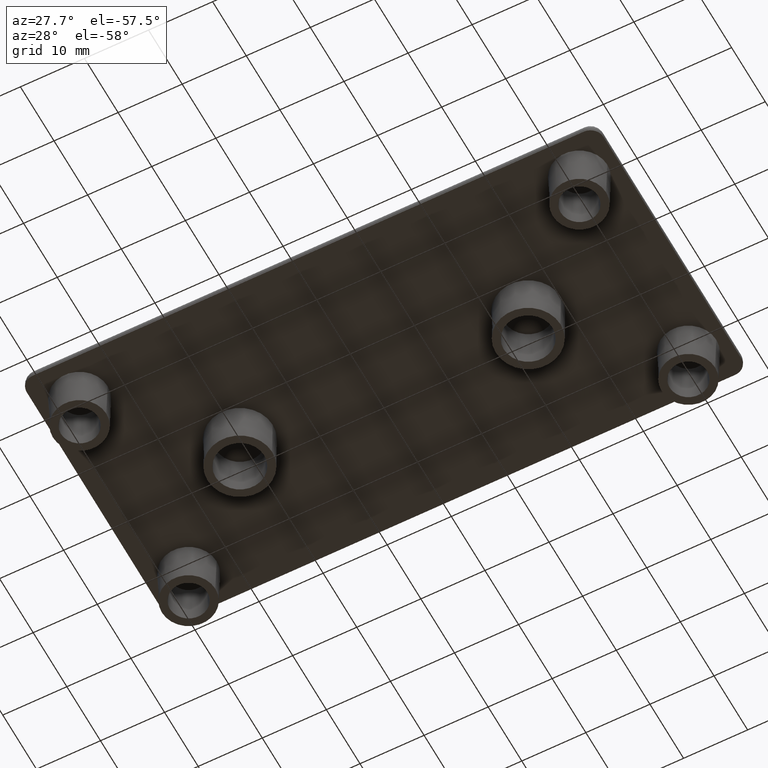
[diagram: clean part render]
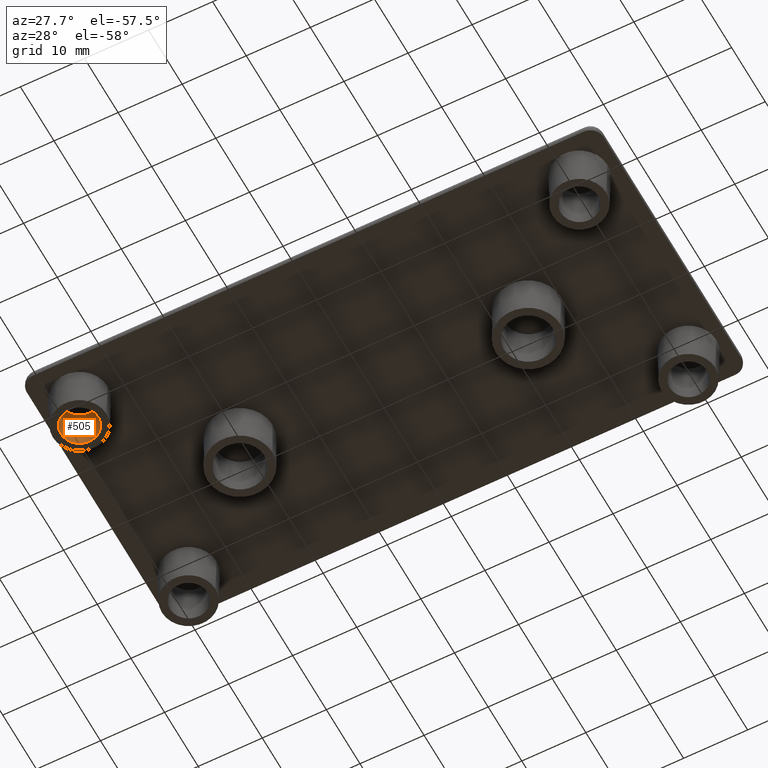
[diagram: same view with one face highlighted and labeled with its STEP entity id]
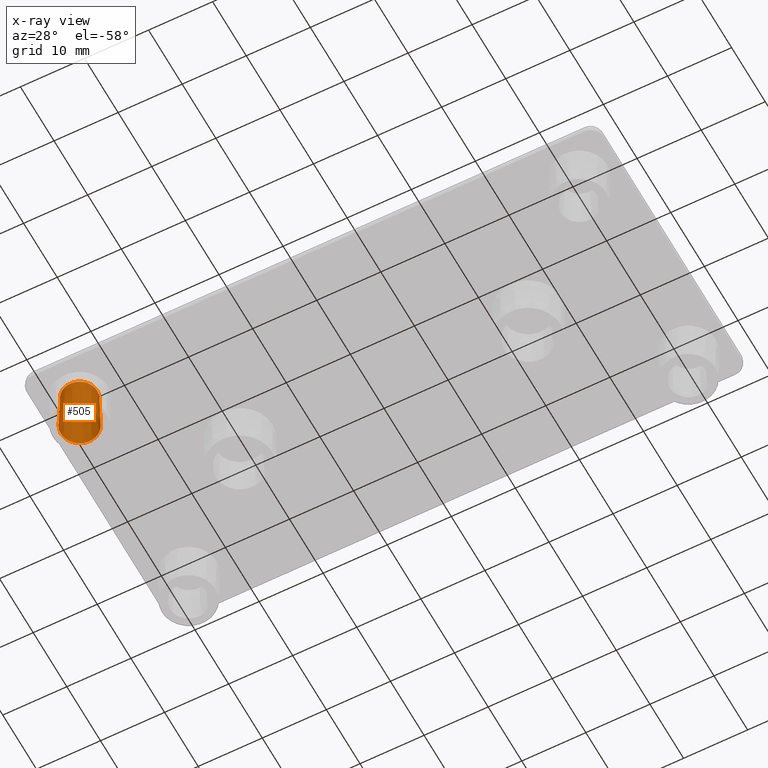
[diagram: x-ray of the same camera — body ghosted, the highlighted face saturated]
A machine part, auxiliary view. The second image highlights one B-rep face of the part: STEP entity #505.
The next image is the same camera in x-ray: the body ghosted, the highlighted face saturated — about 0% of this face is hidden behind the body in this view.
In plain terms, the highlighted conical surface has half-angle 1.5 deg.
Its self-contained STEP definition (entity closure, byte-faithful):
#100=FACE_BOUND('',#179,.T.);
#121=FACE_OUTER_BOUND('',#178,.T.);
#178=EDGE_LOOP('',(#398));
#179=EDGE_LOOP('',(#399));
#236=CIRCLE('',#569,2.925);
#237=CIRCLE('',#570,2.74169854901569);
#284=VERTEX_POINT('',#873);
#285=VERTEX_POINT('',#875);
#328=EDGE_CURVE('',#284,#284,#236,.T.);
#329=EDGE_CURVE('',#285,#285,#237,.T.);
#398=ORIENTED_EDGE('',*,*,#328,.F.);
#399=ORIENTED_EDGE('',*,*,#329,.F.);
#487=CONICAL_SURFACE('',#568,2.925,1.5);
#505=ADVANCED_FACE('',(#121,#100),#487,.F.);
#568=AXIS2_PLACEMENT_3D('',#872,#691,#692);
#569=AXIS2_PLACEMENT_3D('',#874,#693,#694);
#570=AXIS2_PLACEMENT_3D('',#876,#695,#696);
#691=DIRECTION('center_axis',(0.,0.,-1.));
#692=DIRECTION('ref_axis',(-1.,0.,0.));
#693=DIRECTION('center_axis',(0.,0.,1.));
#694=DIRECTION('ref_axis',(-1.,0.,0.));
#695=DIRECTION('center_axis',(0.,0.,-1.));
#696=DIRECTION('ref_axis',(-1.,0.,0.));
#872=CARTESIAN_POINT('Origin',(-39.,-16.2,-7.));
#873=CARTESIAN_POINT('',(-36.075,-16.2,-7.));
#874=CARTESIAN_POINT('Origin',(-39.,-16.2,-7.));
#875=CARTESIAN_POINT('',(-36.2583014509843,-16.2,0.));
#876=CARTESIAN_POINT('Origin',(-39.,-16.2,0.));